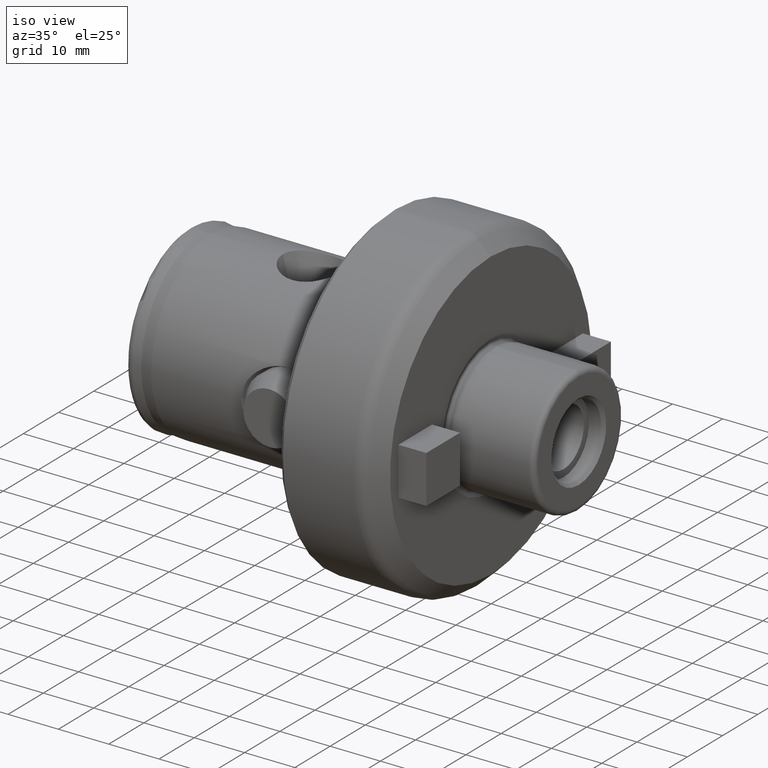
[diagram: clean part render]
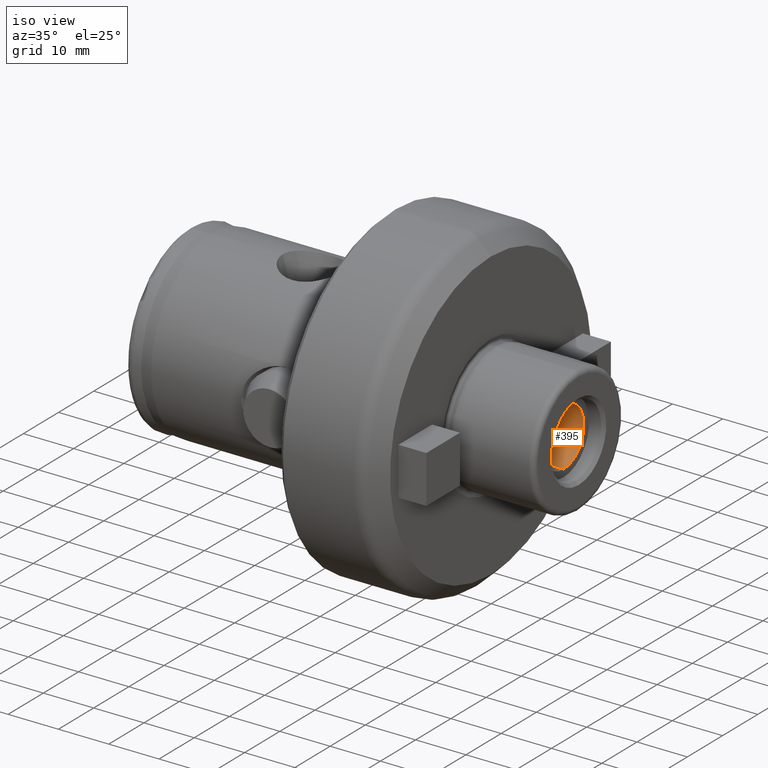
[diagram: same view with one face highlighted and labeled with its STEP entity id]
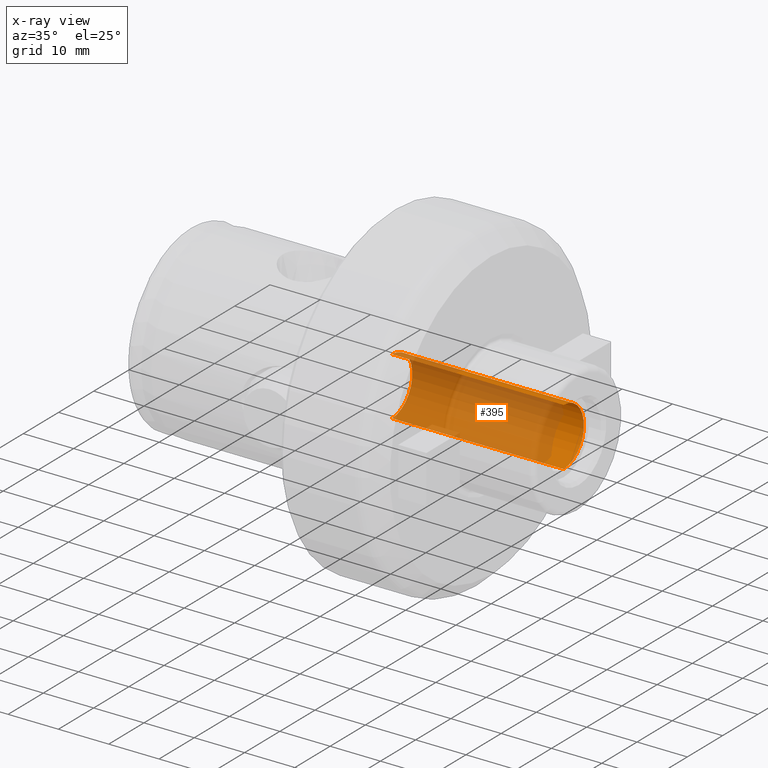
[diagram: x-ray of the same camera — body ghosted, the highlighted face saturated]
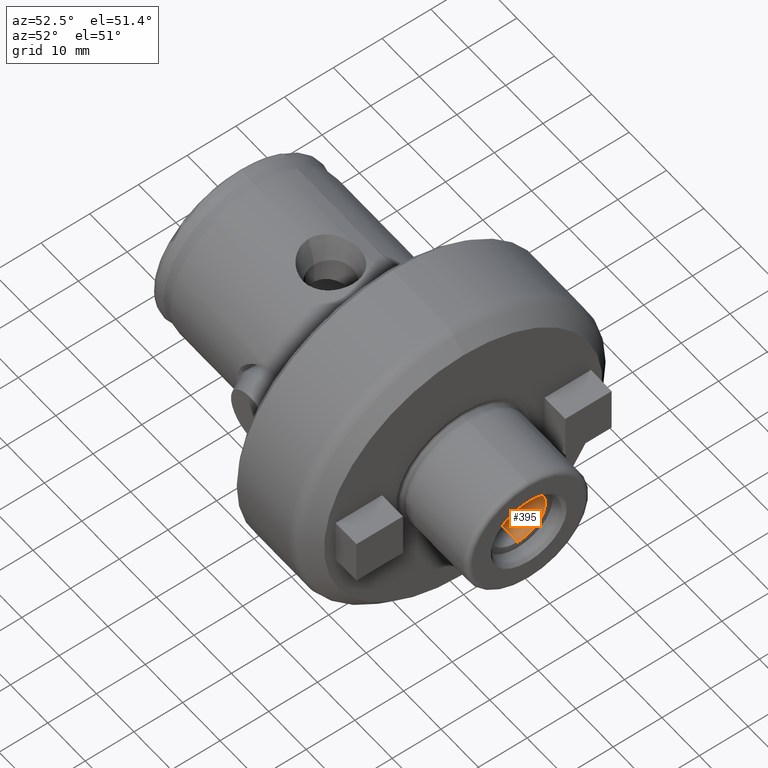
[diagram: same view with one face highlighted and labeled with its STEP entity id]
A machine part, iso view. The second image highlights one B-rep face of the part: STEP entity #395.
The next image is the same camera in x-ray: the body ghosted, the highlighted face saturated — about 83% of this face is hidden behind the body in this view.
A second angle (auxiliary view) of the same face is appended — the face is thin or edge-on in the first view.
In plain terms, the highlighted cylindrical surface (edge-blend (fillet) strip) has radius 5.7544 mm, axis along (1, 0, 0).
Its self-contained STEP definition (entity closure, byte-faithful):
#25 = CARTESIAN_POINT ( 'NONE',  ( 74.41000000000001100, 7.047070801609538500E-016, 5.754369999999986400 ) ) ;
#51 = CARTESIAN_POINT ( 'NONE',  ( 74.41000000000001100, 0.0000000000000000000, -5.754369999999986400 ) ) ;
#67 = CARTESIAN_POINT ( 'NONE',  ( 40.29651508500032300, 7.047070801609538500E-016, 5.754369999999986400 ) ) ;
#126 = CIRCLE ( 'NONE', #278, 5.754369999999986400 ) ;
#130 = CIRCLE ( 'NONE', #295, 5.754369999999986400 ) ;
#156 = VECTOR ( 'NONE', #745, 1000.000000000000000 ) ;
#278 = AXIS2_PLACEMENT_3D ( 'NONE', #832, #833, #834 ) ;
#295 = AXIS2_PLACEMENT_3D ( 'NONE', #829, #830, #831 ) ;
#304 = VECTOR ( 'NONE', #835, 1000.000000000000000 ) ;
#395 = ADVANCED_FACE ( 'NONE', ( #1816 ), #1409, .F. ) ;
#742 = LINE ( 'NONE', #744, #156 ) ;
#744 = CARTESIAN_POINT ( 'NONE',  ( 77.41000000000002500, 7.047070801609538500E-016, 5.754369999999986400 ) ) ;
#745 = DIRECTION ( 'NONE',  ( 1.000000000000000000, -0.0000000000000000000, -0.0000000000000000000 ) ) ;
#814 = LINE ( 'NONE', #828, #304 ) ;
#828 = CARTESIAN_POINT ( 'NONE',  ( 77.41000000000002500, 0.0000000000000000000, -5.754369999999986400 ) ) ;
#829 = CARTESIAN_POINT ( 'NONE',  ( 74.41000000000001100, 0.0000000000000000000, 0.0000000000000000000 ) ) ;
#830 = DIRECTION ( 'NONE',  ( -1.000000000000000000, -0.0000000000000000000, -0.0000000000000000000 ) ) ;
#831 = DIRECTION ( 'NONE',  ( 0.0000000000000000000, 0.0000000000000000000, -1.000000000000000000 ) ) ;
#832 = CARTESIAN_POINT ( 'NONE',  ( 40.29651508500032300, 0.0000000000000000000, 0.0000000000000000000 ) ) ;
#833 = DIRECTION ( 'NONE',  ( 1.000000000000000000, 0.0000000000000000000, 0.0000000000000000000 ) ) ;
#834 = DIRECTION ( 'NONE',  ( 0.0000000000000000000, 0.0000000000000000000, 1.000000000000000000 ) ) ;
#835 = DIRECTION ( 'NONE',  ( 1.000000000000000000, -0.0000000000000000000, -0.0000000000000000000 ) ) ;
#1078 = AXIS2_PLACEMENT_3D ( 'NONE', #1414, #2744, #2767 ) ;
#1358 = ORIENTED_EDGE ( 'NONE', *, *, #2077, .F. ) ;
#1359 = ORIENTED_EDGE ( 'NONE', *, *, #2078, .T. ) ;
#1409 = CYLINDRICAL_SURFACE ( 'NONE', #1078, 5.754369999999986400 ) ;
#1414 = CARTESIAN_POINT ( 'NONE',  ( 77.41000000000002500, 0.0000000000000000000, 0.0000000000000000000 ) ) ;
#1503 = VERTEX_POINT ( 'NONE', #51 ) ;
#1517 = VERTEX_POINT ( 'NONE', #25 ) ;
#1521 = VERTEX_POINT ( 'NONE', #67 ) ;
#1645 = VERTEX_POINT ( 'NONE', #2888 ) ;
#1765 = ORIENTED_EDGE ( 'NONE', *, *, #2060, .F. ) ;
#1786 = ORIENTED_EDGE ( 'NONE', *, *, #2076, .F. ) ;
#1816 = FACE_OUTER_BOUND ( 'NONE', #1879, .T. ) ;
#1879 = EDGE_LOOP ( 'NONE', ( #1765, #1358, #1359, #1786 ) ) ;
#2060 = EDGE_CURVE ( 'NONE', #1521, #1517, #742, .T. ) ;
#2076 = EDGE_CURVE ( 'NONE', #1517, #1503, #130, .T. ) ;
#2077 = EDGE_CURVE ( 'NONE', #1645, #1521, #126, .T. ) ;
#2078 = EDGE_CURVE ( 'NONE', #1645, #1503, #814, .T. ) ;
#2744 = DIRECTION ( 'NONE',  ( 1.000000000000000000, -0.0000000000000000000, -0.0000000000000000000 ) ) ;
#2767 = DIRECTION ( 'NONE',  ( 0.0000000000000000000, 0.0000000000000000000, -1.000000000000000000 ) ) ;
#2888 = CARTESIAN_POINT ( 'NONE',  ( 40.29651508500032300, 0.0000000000000000000, -5.754369999999986400 ) ) ;